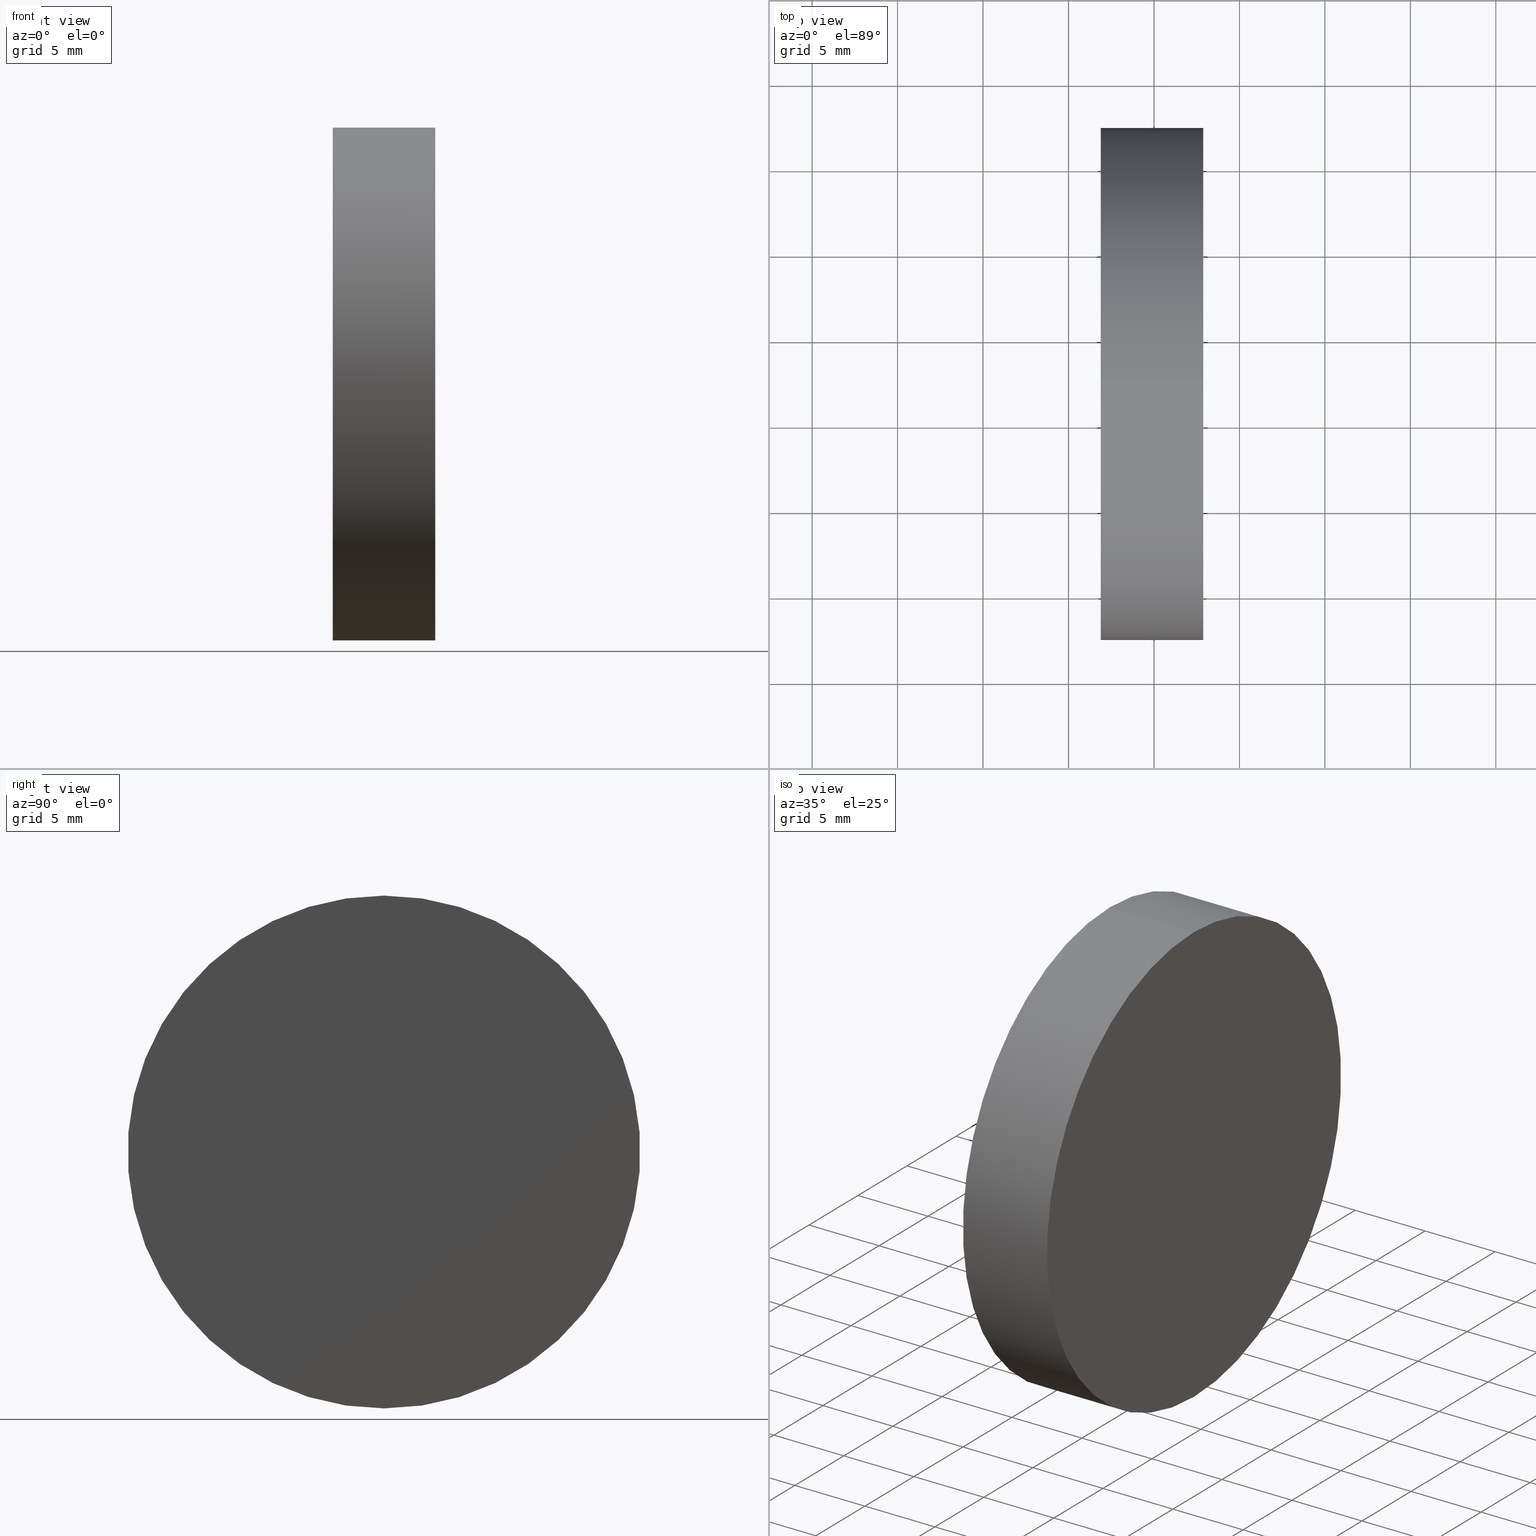
[diagram: canonical four-view strip — front | top / right | iso, engineering-drawing reading convention]
A machine part, canonical four-view strip (front | top / right | iso — engineering-drawing reading convention). The complete STEP part file that produces these views, byte-faithful:
ISO-10303-21;
HEADER;
FILE_DESCRIPTION (( 'STEP AP214' ),
    '1' );
FILE_NAME ('431020.STEP',
    '2019-08-23T06:32:53',
    ( '' ),
    ( '' ),
    'SwSTEP 2.0',
    'SolidWorks 2016',
    '' );
FILE_SCHEMA (( 'AUTOMOTIVE_DESIGN' ));
ENDSEC;

DATA;
#1 = PRODUCT_DEFINITION ( 'δ֪', '', #26, #17 ) ;
#2 = LINE ( 'NONE', #85, #129 ) ;
#3 = AXIS2_PLACEMENT_3D ( 'NONE', #125, #139, #40 ) ;
#4 = CYLINDRICAL_SURFACE ( 'NONE', #107, 15.00000000000000000 ) ;
#5 = ORIENTED_EDGE ( 'NONE', *, *, #98, .F. ) ;
#6 = FILL_AREA_STYLE ('',( #47 ) ) ;
#7 = CARTESIAN_POINT ( 'NONE',  ( 262.8849040828112600, 77.31136001242396100, -15.00000000000000000 ) ) ;
#8 =( NAMED_UNIT ( * ) PLANE_ANGLE_UNIT ( ) SI_UNIT ( $, .RADIAN. ) );
#9 = APPLICATION_PROTOCOL_DEFINITION ( 'draft international standard', 'automotive_design', 1998, #51 ) ;
#10 = SHAPE_DEFINITION_REPRESENTATION ( #14, #132 ) ;
#11 = FACE_OUTER_BOUND ( 'NONE', #95, .T. ) ;
#12 = DIRECTION ( 'NONE',  ( 0.0000000000000000000, 0.0000000000000000000, 1.000000000000000000 ) ) ;
#13 = CYLINDRICAL_SURFACE ( 'NONE', #75, 15.00000000000000000 ) ;
#14 = PRODUCT_DEFINITION_SHAPE ( 'NONE', 'NONE',  #1 ) ;
#15 = ADVANCED_FACE ( 'NONE', ( #21 ), #87, .F. ) ;
#16 = ADVANCED_FACE ( 'NONE', ( #66 ), #13, .T. ) ;
#17 = PRODUCT_DEFINITION_CONTEXT ( 'detailed design', #34, 'design' ) ;
#18 = SURFACE_STYLE_FILL_AREA ( #119 ) ;
#19 = ORIENTED_EDGE ( 'NONE', *, *, #89, .T. ) ;
#20 = STYLED_ITEM ( 'NONE', ( #110 ), #132 ) ;
#21 = FACE_OUTER_BOUND ( 'NONE', #131, .T. ) ;
#22 =( LENGTH_UNIT ( ) NAMED_UNIT ( * ) SI_UNIT ( .MILLI., .METRE. ) );
#23 = CARTESIAN_POINT ( 'NONE',  ( 256.8849040828112000, 77.31136001242396100, 0.0000000000000000000 ) ) ;
#24 = DIRECTION ( 'NONE',  ( 1.000000000000000000, 0.0000000000000000000, 0.0000000000000000000 ) ) ;
#25 = MECHANICAL_DESIGN_GEOMETRIC_PRESENTATION_REPRESENTATION (  '', ( #133 ), #118 ) ;
#26 = PRODUCT_DEFINITION_FORMATION_WITH_SPECIFIED_SOURCE ( '�κ�', '', #79, .NOT_KNOWN. ) ;
#27 = VERTEX_POINT ( 'NONE', #48 ) ;
#28 = AXIS2_PLACEMENT_3D ( 'NONE', #33, #74, #72 ) ;
#29 = SURFACE_STYLE_USAGE ( .BOTH. , #123 ) ;
#30 = EDGE_LOOP ( 'NONE', ( #117, #108 ) ) ;
#31 = AXIS2_PLACEMENT_3D ( 'NONE', #136, #94, #103 ) ;
#32 = ORIENTED_EDGE ( 'NONE', *, *, #62, .T. ) ;
#33 = CARTESIAN_POINT ( 'NONE',  ( 0.0000000000000000000, 0.0000000000000000000, 0.0000000000000000000 ) ) ;
#34 = APPLICATION_CONTEXT ( 'automotive_design' ) ;
#35 = UNCERTAINTY_MEASURE_WITH_UNIT (LENGTH_MEASURE( 1.000000000000000100E-005 ), #63, 'distance_accuracy_value', 'NONE');
#36 = ORIENTED_EDGE ( 'NONE', *, *, #98, .T. ) ;
#37 = CIRCLE ( 'NONE', #3, 15.00000000000000000 ) ;
#38 = DIRECTION ( 'NONE',  ( -1.000000000000000000, -0.0000000000000000000, -0.0000000000000000000 ) ) ;
#39 = CIRCLE ( 'NONE', #104, 15.00000000000000000 ) ;
#40 = DIRECTION ( 'NONE',  ( 0.0000000000000000000, 0.0000000000000000000, 1.000000000000000000 ) ) ;
#41 =( NAMED_UNIT ( * ) SI_UNIT ( $, .STERADIAN. ) SOLID_ANGLE_UNIT ( ) );
#42 =( GEOMETRIC_REPRESENTATION_CONTEXT ( 3 ) GLOBAL_UNCERTAINTY_ASSIGNED_CONTEXT ( ( #109 ) ) GLOBAL_UNIT_ASSIGNED_CONTEXT ( ( #22, #8, #135 ) ) REPRESENTATION_CONTEXT ( 'NONE', 'WORKASPACE' ) );
#43 = VERTEX_POINT ( 'NONE', #7 ) ;
#44 = COLOUR_RGB ( '',1.000000000000000000, 1.000000000000000000, 1.000000000000000000 ) ;
#45 = VERTEX_POINT ( 'NONE', #99 ) ;
#46 = EDGE_CURVE ( 'NONE', #45, #27, #39, .T. ) ;
#47 = FILL_AREA_STYLE_COLOUR ( '', #97 ) ;
#48 = CARTESIAN_POINT ( 'NONE',  ( 256.8849040828112000, 77.31136001242396100, 15.00000000000000000 ) ) ;
#49 = DIRECTION ( 'NONE',  ( -1.000000000000000000, -0.0000000000000000000, -0.0000000000000000000 ) ) ;
#50 = CARTESIAN_POINT ( 'NONE',  ( 262.8849040828112600, 77.31136001242396100, 15.00000000000000000 ) ) ;
#51 = APPLICATION_CONTEXT ( 'automotive_design' ) ;
#52 = ORIENTED_EDGE ( 'NONE', *, *, #67, .F. ) ;
#53 = SURFACE_SIDE_STYLE ('',( #18 ) ) ;
#54 = EDGE_LOOP ( 'NONE', ( #86, #32, #19, #59 ) ) ;
#55 = EDGE_CURVE ( 'NONE', #43, #45, #2, .T. ) ;
#56 = ORIENTED_EDGE ( 'NONE', *, *, #55, .T. ) ;
#57 = CARTESIAN_POINT ( 'NONE',  ( 251.3749016906533600, 77.31136001242396100, 0.0000000000000000000 ) ) ;
#58 =( LENGTH_UNIT ( ) NAMED_UNIT ( * ) SI_UNIT ( .MILLI., .METRE. ) );
#59 = ORIENTED_EDGE ( 'NONE', *, *, #46, .F. ) ;
#60 =( GEOMETRIC_REPRESENTATION_CONTEXT ( 3 ) GLOBAL_UNCERTAINTY_ASSIGNED_CONTEXT ( ( #35 ) ) GLOBAL_UNIT_ASSIGNED_CONTEXT ( ( #63, #81, #41 ) ) REPRESENTATION_CONTEXT ( 'NONE', 'WORKASPACE' ) );
#61 = MANIFOLD_SOLID_BREP ( '��ת1', #100 ) ;
#62 = EDGE_CURVE ( 'NONE', #43, #82, #37, .T. ) ;
#63 =( LENGTH_UNIT ( ) NAMED_UNIT ( * ) SI_UNIT ( .MILLI., .METRE. ) );
#64 = ADVANCED_FACE ( 'NONE', ( #65 ), #124, .F. ) ;
#65 = FACE_OUTER_BOUND ( 'NONE', #30, .T. ) ;
#66 = FACE_OUTER_BOUND ( 'NONE', #54, .T. ) ;
#67 = EDGE_CURVE ( 'NONE', #27, #45, #121, .T. ) ;
#68 =( NAMED_UNIT ( * ) PLANE_ANGLE_UNIT ( ) SI_UNIT ( $, .RADIAN. ) );
#69 = DIRECTION ( 'NONE',  ( 0.0000000000000000000, 0.0000000000000000000, 1.000000000000000000 ) ) ;
#70 = ORIENTED_EDGE ( 'NONE', *, *, #89, .F. ) ;
#71 = AXIS2_PLACEMENT_3D ( 'NONE', #90, #73, #12 ) ;
#72 = DIRECTION ( 'NONE',  ( 1.000000000000000000, 0.0000000000000000000, 0.0000000000000000000 ) ) ;
#73 = DIRECTION ( 'NONE',  ( -1.000000000000000000, -0.0000000000000000000, -0.0000000000000000000 ) ) ;
#74 = DIRECTION ( 'NONE',  ( 0.0000000000000000000, 0.0000000000000000000, 1.000000000000000000 ) ) ;
#75 = AXIS2_PLACEMENT_3D ( 'NONE', #57, #77, #69 ) ;
#76 = PRODUCT_RELATED_PRODUCT_CATEGORY ( 'part', '', ( #79 ) ) ;
#77 = DIRECTION ( 'NONE',  ( -1.000000000000000000, -0.0000000000000000000, -0.0000000000000000000 ) ) ;
#78 = DIRECTION ( 'NONE',  ( -1.000000000000000000, -0.0000000000000000000, -0.0000000000000000000 ) ) ;
#79 = PRODUCT ( '431020', '431020', '', ( #127 ) ) ;
#80 = DIRECTION ( 'NONE',  ( -1.000000000000000000, -0.0000000000000000000, -0.0000000000000000000 ) ) ;
#81 =( NAMED_UNIT ( * ) PLANE_ANGLE_UNIT ( ) SI_UNIT ( $, .RADIAN. ) );
#82 = VERTEX_POINT ( 'NONE', #50 ) ;
#83 = LINE ( 'NONE', #116, #111 ) ;
#84 = CARTESIAN_POINT ( 'NONE',  ( 256.8849040828112000, 77.31136001242396100, 0.0000000000000000000 ) ) ;
#85 = CARTESIAN_POINT ( 'NONE',  ( 251.3749016906533600, 77.31136001242396100, -15.00000000000000000 ) ) ;
#86 = ORIENTED_EDGE ( 'NONE', *, *, #55, .F. ) ;
#87 = PLANE ( 'NONE',  #113 ) ;
#88 = UNCERTAINTY_MEASURE_WITH_UNIT (LENGTH_MEASURE( 1.000000000000000100E-005 ), #58, 'distance_accuracy_value', 'NONE');
#89 = EDGE_CURVE ( 'NONE', #82, #27, #83, .T. ) ;
#90 = CARTESIAN_POINT ( 'NONE',  ( 262.8849040828112600, 77.31136001242396100, 0.0000000000000000000 ) ) ;
#91 = SURFACE_STYLE_FILL_AREA ( #6 ) ;
#92 = CARTESIAN_POINT ( 'NONE',  ( 251.3749016906533600, 77.31136001242396100, 0.0000000000000000000 ) ) ;
#93 = DIRECTION ( 'NONE',  ( 0.0000000000000000000, 0.0000000000000000000, -1.000000000000000000 ) ) ;
#94 = DIRECTION ( 'NONE',  ( -1.000000000000000000, -0.0000000000000000000, -0.0000000000000000000 ) ) ;
#95 = EDGE_LOOP ( 'NONE', ( #36, #56, #52, #70 ) ) ;
#96 = MECHANICAL_DESIGN_GEOMETRIC_PRESENTATION_REPRESENTATION (  '', ( #20 ), #42 ) ;
#97 = COLOUR_RGB ( '',1.000000000000000000, 1.000000000000000000, 1.000000000000000000 ) ;
#98 = EDGE_CURVE ( 'NONE', #82, #43, #138, .T. ) ;
#99 = CARTESIAN_POINT ( 'NONE',  ( 256.8849040828112000, 77.31136001242396100, -15.00000000000000000 ) ) ;
#100 = CLOSED_SHELL ( 'NONE', ( #106, #64, #16, #15 ) ) ;
#101 = DIRECTION ( 'NONE',  ( 0.0000000000000000000, 0.0000000000000000000, 1.000000000000000000 ) ) ;
#102 = CARTESIAN_POINT ( 'NONE',  ( 262.8849040828112600, 92.31136001242396100, 0.0000000000000000000 ) ) ;
#103 = DIRECTION ( 'NONE',  ( 0.0000000000000000000, 0.0000000000000000000, 1.000000000000000000 ) ) ;
#104 = AXIS2_PLACEMENT_3D ( 'NONE', #84, #78, #101 ) ;
#105 = FILL_AREA_STYLE_COLOUR ( '', #44 ) ;
#106 = ADVANCED_FACE ( 'NONE', ( #11 ), #4, .T. ) ;
#107 = AXIS2_PLACEMENT_3D ( 'NONE', #92, #80, #126 ) ;
#108 = ORIENTED_EDGE ( 'NONE', *, *, #46, .T. ) ;
#109 = UNCERTAINTY_MEASURE_WITH_UNIT (LENGTH_MEASURE( 1.000000000000000100E-005 ), #22, 'distance_accuracy_value', 'NONE');
#110 = PRESENTATION_STYLE_ASSIGNMENT (( #128 ) ) ;
#111 = VECTOR ( 'NONE', #49, 1000.000000000000000 ) ;
#112 = DIRECTION ( 'NONE',  ( -1.000000000000000000, 0.0000000000000000000, -0.0000000000000000000 ) ) ;
#113 = AXIS2_PLACEMENT_3D ( 'NONE', #102, #112, #114 ) ;
#114 = DIRECTION ( 'NONE',  ( -0.0000000000000000000, 0.0000000000000000000, 1.000000000000000000 ) ) ;
#115 = PRESENTATION_LAYER_ASSIGNMENT (  '', '', ( #133 ) ) ;
#116 = CARTESIAN_POINT ( 'NONE',  ( 251.3749016906533600, 77.31136001242396100, 15.00000000000000000 ) ) ;
#117 = ORIENTED_EDGE ( 'NONE', *, *, #67, .T. ) ;
#118 =( GEOMETRIC_REPRESENTATION_CONTEXT ( 3 ) GLOBAL_UNCERTAINTY_ASSIGNED_CONTEXT ( ( #88 ) ) GLOBAL_UNIT_ASSIGNED_CONTEXT ( ( #58, #68, #134 ) ) REPRESENTATION_CONTEXT ( 'NONE', 'WORKASPACE' ) );
#119 = FILL_AREA_STYLE ('',( #105 ) ) ;
#120 = ORIENTED_EDGE ( 'NONE', *, *, #62, .F. ) ;
#121 = CIRCLE ( 'NONE', #31, 15.00000000000000000 ) ;
#122 = PRESENTATION_LAYER_ASSIGNMENT (  '', '', ( #20 ) ) ;
#123 = SURFACE_SIDE_STYLE ('',( #91 ) ) ;
#124 = PLANE ( 'NONE',  #130 ) ;
#125 = CARTESIAN_POINT ( 'NONE',  ( 262.8849040828112600, 77.31136001242396100, 0.0000000000000000000 ) ) ;
#126 = DIRECTION ( 'NONE',  ( 0.0000000000000000000, 0.0000000000000000000, 1.000000000000000000 ) ) ;
#127 = PRODUCT_CONTEXT ( 'NONE', #51, 'mechanical' ) ;
#128 = SURFACE_STYLE_USAGE ( .BOTH. , #53 ) ;
#129 = VECTOR ( 'NONE', #38, 1000.000000000000000 ) ;
#130 = AXIS2_PLACEMENT_3D ( 'NONE', #23, #24, #93 ) ;
#131 = EDGE_LOOP ( 'NONE', ( #5, #120 ) ) ;
#132 = ADVANCED_BREP_SHAPE_REPRESENTATION ( '431020', ( #61, #28 ), #60 ) ;
#133 = STYLED_ITEM ( 'NONE', ( #140 ), #61 ) ;
#134 =( NAMED_UNIT ( * ) SI_UNIT ( $, .STERADIAN. ) SOLID_ANGLE_UNIT ( ) );
#135 =( NAMED_UNIT ( * ) SI_UNIT ( $, .STERADIAN. ) SOLID_ANGLE_UNIT ( ) );
#136 = CARTESIAN_POINT ( 'NONE',  ( 256.8849040828112000, 77.31136001242396100, 0.0000000000000000000 ) ) ;
#137 = APPLICATION_PROTOCOL_DEFINITION ( 'draft international standard', 'automotive_design', 1998, #34 ) ;
#138 = CIRCLE ( 'NONE', #71, 15.00000000000000000 ) ;
#139 = DIRECTION ( 'NONE',  ( -1.000000000000000000, -0.0000000000000000000, -0.0000000000000000000 ) ) ;
#140 = PRESENTATION_STYLE_ASSIGNMENT (( #29 ) ) ;
ENDSEC;
END-ISO-10303-21;
